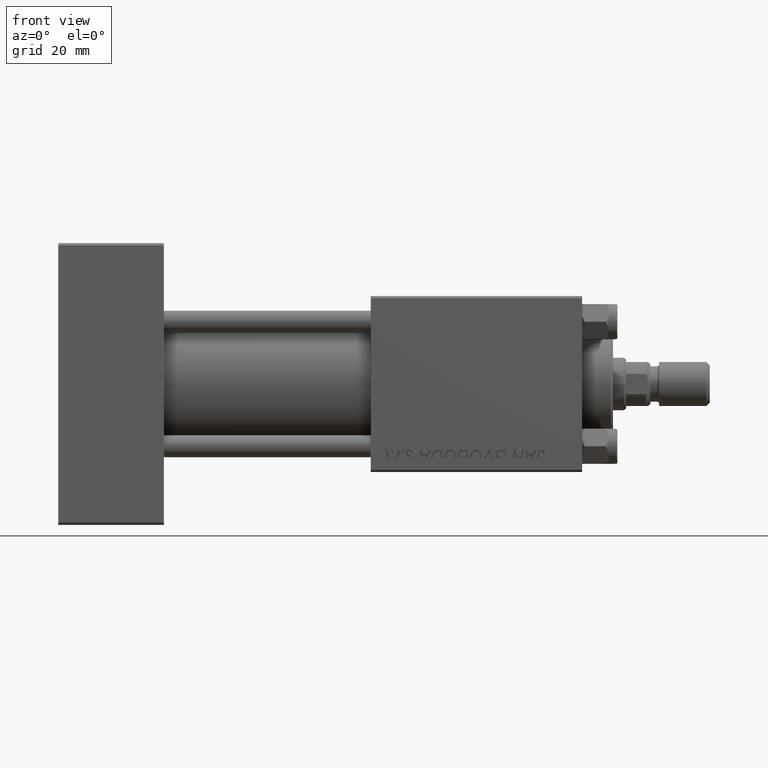
[diagram: clean part render]
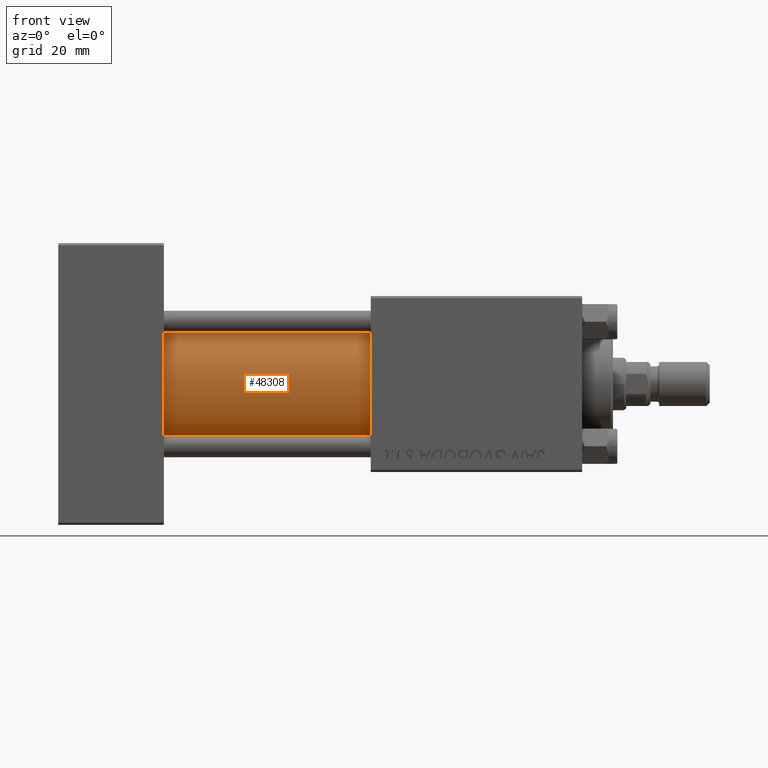
[diagram: same view with one face highlighted and labeled with its STEP entity id]
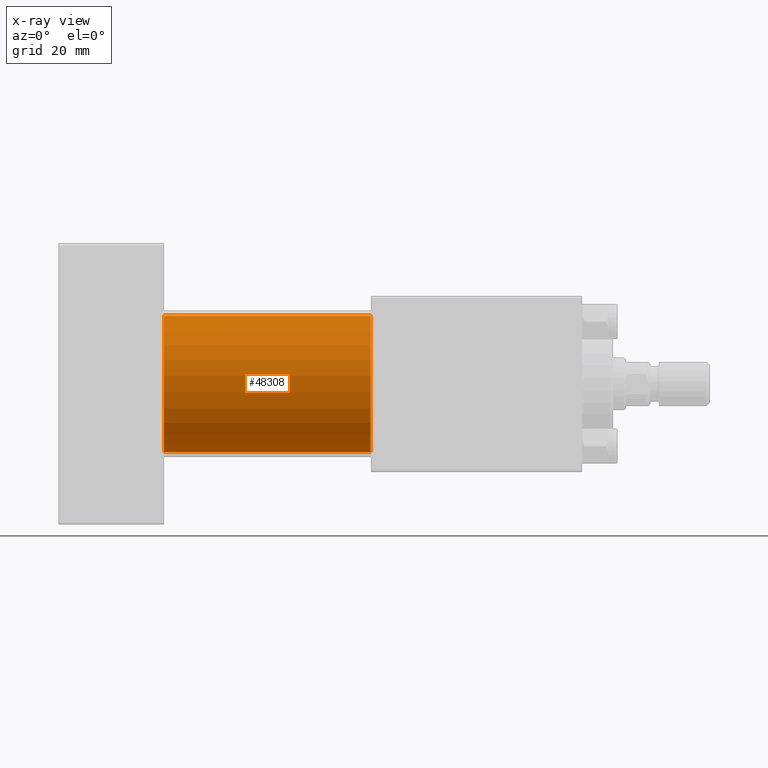
[diagram: x-ray of the same camera — body ghosted, the highlighted face saturated]
A machine part, front view. The second image highlights one B-rep face of the part: STEP entity #48308.
The next image is the same camera in x-ray: the body ghosted, the highlighted face saturated — about 0% of this face is hidden behind the body in this view.
In plain terms, the highlighted cylindrical surface (partial cylindrical patch) has radius 15.5 mm, axis along (-1, -0, -0).
Its self-contained STEP definition (entity closure, byte-faithful):
#1613 = CARTESIAN_POINT ( 'NONE',  ( 24.00000000000000000, -2.602085213965210642E-15, 0.000000000000000000 ) ) ;
#4081 = EDGE_CURVE ( 'NONE', #19310, #12593, #46409, .T. ) ;
#4082 = VERTEX_POINT ( 'NONE', #17627 ) ;
#5421 = DIRECTION ( 'NONE',  ( 1.000000000000000000, 0.000000000000000000, 0.000000000000000000 ) ) ;
#5470 = ORIENTED_EDGE ( 'NONE', *, *, #36200, .F. ) ;
#7891 = VECTOR ( 'NONE', #16516, 1000.000000000000000 ) ;
#10546 = FACE_OUTER_BOUND ( 'NONE', #49806, .T. ) ;
#10941 = VECTOR ( 'NONE', #31695, 1000.000000000000000 ) ;
#11718 = AXIS2_PLACEMENT_3D ( 'NONE', #47346, #12425, #16499 ) ;
#12425 = DIRECTION ( 'NONE',  ( 1.000000000000000000, 0.000000000000000000, 0.000000000000000000 ) ) ;
#12593 = VERTEX_POINT ( 'NONE', #19329 ) ;
#14635 = EDGE_CURVE ( 'NONE', #20450, #12593, #28964, .T. ) ;
#16499 = DIRECTION ( 'NONE',  ( 0.000000000000000000, 0.000000000000000000, -1.000000000000000000 ) ) ;
#16516 = DIRECTION ( 'NONE',  ( -1.000000000000000000, -0.000000000000000000, -0.000000000000000000 ) ) ;
#16834 = CARTESIAN_POINT ( 'NONE',  ( 71.00000000000001421, -7.038826752868131828E-16, -15.50000000000000000 ) ) ;
#17627 = CARTESIAN_POINT ( 'NONE',  ( 71.00000000000001421, -2.602085213965210642E-15, 15.50000000000000000 ) ) ;
#19310 = VERTEX_POINT ( 'NONE', #35501 ) ;
#19329 = CARTESIAN_POINT ( 'NONE',  ( 24.00000000000000000, -7.038826752868131828E-16, -15.50000000000000000 ) ) ;
#20450 = VERTEX_POINT ( 'NONE', #16834 ) ;
#21334 = CARTESIAN_POINT ( 'NONE',  ( 71.00000000000001421, -7.038826752868131828E-16, -15.50000000000000000 ) ) ;
#21455 = CIRCLE ( 'NONE', #11718, 15.50000000000000000 ) ;
#28170 = AXIS2_PLACEMENT_3D ( 'NONE', #45466, #49545, #37808 ) ;
#28964 = LINE ( 'NONE', #21334, #7891 ) ;
#30503 = LINE ( 'NONE', #35774, #10941 ) ;
#31098 = ORIENTED_EDGE ( 'NONE', *, *, #14635, .F. ) ;
#31695 = DIRECTION ( 'NONE',  ( -1.000000000000000000, -0.000000000000000000, -0.000000000000000000 ) ) ;
#32561 = AXIS2_PLACEMENT_3D ( 'NONE', #1613, #5421, #44398 ) ;
#34851 = ORIENTED_EDGE ( 'NONE', *, *, #4081, .T. ) ;
#35501 = CARTESIAN_POINT ( 'NONE',  ( 24.00000000000000000, -2.602085213965210642E-15, 15.50000000000000000 ) ) ;
#35774 = CARTESIAN_POINT ( 'NONE',  ( 71.00000000000001421, -2.602085213965210642E-15, 15.50000000000000000 ) ) ;
#36200 = EDGE_CURVE ( 'NONE', #4082, #20450, #21455, .T. ) ;
#37808 = DIRECTION ( 'NONE',  ( 0.000000000000000000, 0.000000000000000000, 1.000000000000000000 ) ) ;
#44023 = EDGE_CURVE ( 'NONE', #4082, #19310, #30503, .T. ) ;
#44398 = DIRECTION ( 'NONE',  ( 0.000000000000000000, 0.000000000000000000, 1.000000000000000000 ) ) ;
#45466 = CARTESIAN_POINT ( 'NONE',  ( 71.00000000000001421, -2.602085213965210642E-15, 0.000000000000000000 ) ) ;
#46019 = ORIENTED_EDGE ( 'NONE', *, *, #44023, .T. ) ;
#46409 = CIRCLE ( 'NONE', #32561, 15.50000000000000000 ) ;
#47346 = CARTESIAN_POINT ( 'NONE',  ( 71.00000000000001421, -2.602085213965210642E-15, 0.000000000000000000 ) ) ;
#48308 = ADVANCED_FACE ( 'NONE', ( #10546 ), #49807, .T. ) ;
#49545 = DIRECTION ( 'NONE',  ( -1.000000000000000000, -0.000000000000000000, -0.000000000000000000 ) ) ;
#49806 = EDGE_LOOP ( 'NONE', ( #31098, #5470, #46019, #34851 ) ) ;
#49807 = CYLINDRICAL_SURFACE ( 'NONE', #28170, 15.50000000000000000 ) ;